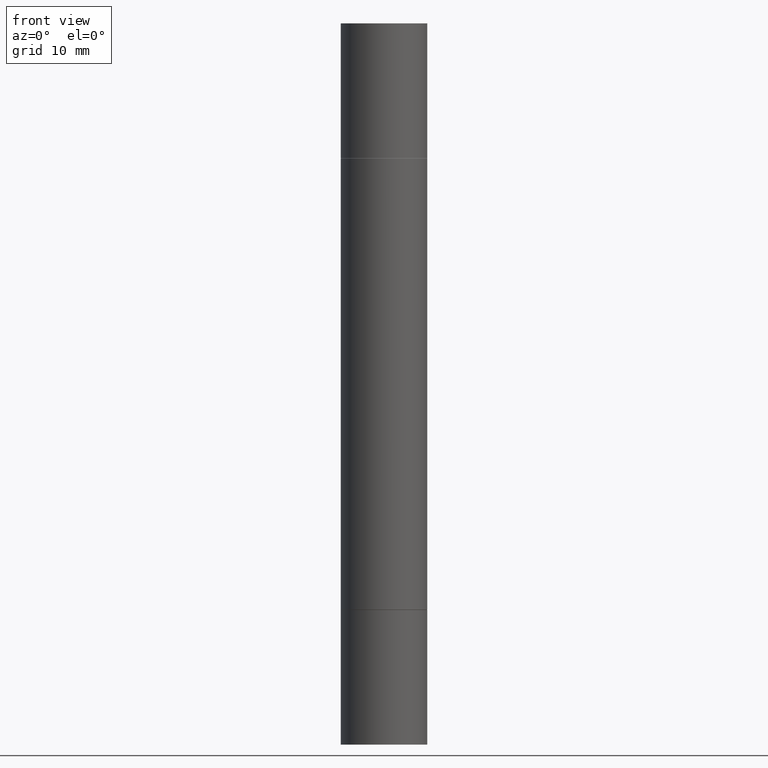
[diagram: clean part render]
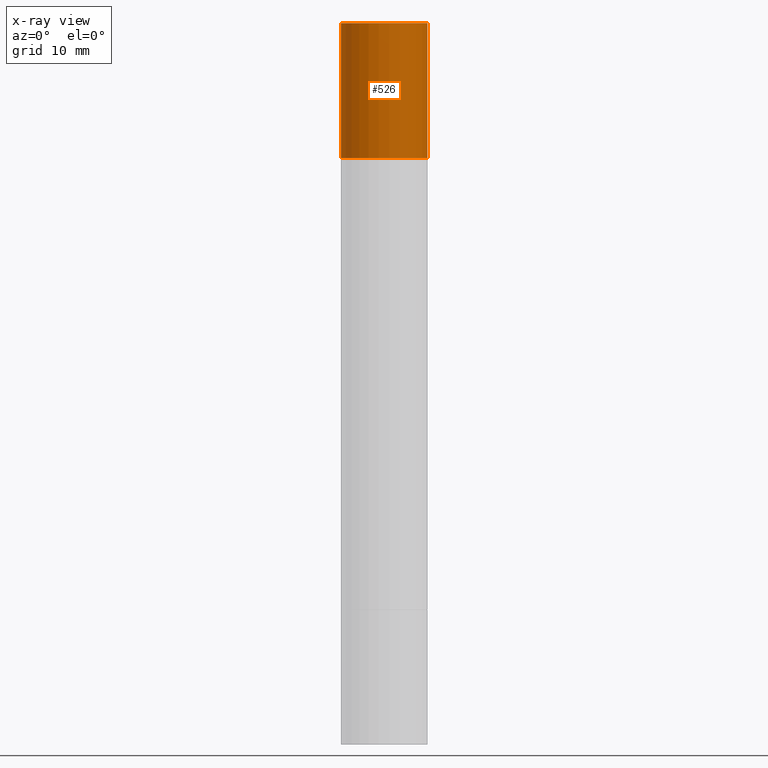
[diagram: x-ray — body ghosted, one internal face saturated and labeled with its STEP entity id]
A machine part, front view, then the same camera in x-ray: the body is ghosted and one INTERNAL B-rep face — a face not visible from any outside direction — is saturated and labeled: STEP entity #526.
In plain terms, the highlighted cylindrical surface (partial cylindrical patch) has radius 4.4996 mm, axis along (-0, -0, -1).
Its self-contained STEP definition (entity closure, byte-faithful):
#21 = ORIENTED_EDGE ( 'NONE', *, *, #302, .F. ) ;
#31 = DIRECTION ( 'NONE',  ( 1.000000000000000000, -6.982962677686272233E-15, 0.000000000000000000 ) ) ;
#47 = VERTEX_POINT ( 'NONE', #639 ) ;
#48 = DIRECTION ( 'NONE',  ( -2.445468806185136877E-29, -3.492890411551753071E-15, -1.000000000000000000 ) ) ;
#53 = ORIENTED_EDGE ( 'NONE', *, *, #358, .T. ) ;
#57 = DIRECTION ( 'NONE',  ( 1.000000000000000000, -6.982962677686266711E-15, 0.000000000000000000 ) ) ;
#95 = VECTOR ( 'NONE', #48, 39.37007874015748143 ) ;
#98 = CIRCLE ( 'NONE', #468, 0.1771500000000000019 ) ;
#111 = CARTESIAN_POINT ( 'NONE',  ( 0.1771500000000000019, -1.154875829063514805E-14, -2.952799999999998981 ) ) ;
#137 = EDGE_LOOP ( 'NONE', ( #309, #320, #53, #21 ) ) ;
#181 = CARTESIAN_POINT ( 'NONE',  ( 0.1771500000000000019, -3.160232678252458120E-15, -0.5511999999999995792 ) ) ;
#249 = EDGE_CURVE ( 'NONE', #603, #571, #98, .T. ) ;
#250 = CARTESIAN_POINT ( 'NONE',  ( 7.220980290903470182E-29, 2.080354946989631982E-18, 5.463695987328526437E-16 ) ) ;
#256 = DIRECTION ( 'NONE',  ( 1.000000000000000000, -6.982962677686266711E-15, 0.000000000000000000 ) ) ;
#284 = CARTESIAN_POINT ( 'NONE',  ( -0.1771500000000000019, -9.096389231977797770E-15, -2.952799999999998981 ) ) ;
#289 = CYLINDRICAL_SURFACE ( 'NONE', #322, 0.1771500000000000019 ) ;
#296 = CARTESIAN_POINT ( 'NONE',  ( 0.000000000000000000, -1.031172645228302408E-14, -2.952799999999998981 ) ) ;
#302 = EDGE_CURVE ( 'NONE', #571, #459, #363, .T. ) ;
#309 = ORIENTED_EDGE ( 'NONE', *, *, #249, .F. ) ;
#320 = ORIENTED_EDGE ( 'NONE', *, *, #474, .T. ) ;
#322 = AXIS2_PLACEMENT_3D ( 'NONE', #296, #496, #31 ) ;
#357 = CARTESIAN_POINT ( 'NONE',  ( -0.1771500000000000019, 2.547769778285537851E-16, 5.463695987328559963E-16 ) ) ;
#358 = EDGE_CURVE ( 'NONE', #47, #459, #431, .T. ) ;
#363 = LINE ( 'NONE', #111, #95 ) ;
#431 = CIRCLE ( 'NONE', #523, 0.1771500000000000019 ) ;
#440 = FACE_OUTER_BOUND ( 'NONE', #137, .T. ) ;
#452 = LINE ( 'NONE', #284, #543 ) ;
#458 = DIRECTION ( 'NONE',  ( 2.445468806185136597E-29, 3.492890411551752677E-15, 1.000000000000000000 ) ) ;
#459 = VERTEX_POINT ( 'NONE', #181 ) ;
#462 = DIRECTION ( 'NONE',  ( 2.445468806185136597E-29, 3.492890411551752677E-15, 1.000000000000000000 ) ) ;
#468 = AXIS2_PLACEMENT_3D ( 'NONE', #250, #458, #57 ) ;
#474 = EDGE_CURVE ( 'NONE', #603, #47, #452, .T. ) ;
#496 = DIRECTION ( 'NONE',  ( -2.445468806185136597E-29, -3.492890411551752677E-15, -1.000000000000000000 ) ) ;
#502 = CARTESIAN_POINT ( 'NONE',  ( 0.1771500000000000019, -1.234951483405132701E-15, 5.463695987328526437E-16 ) ) ;
#523 = AXIS2_PLACEMENT_3D ( 'NONE', #573, #462, #256 ) ;
#526 = ADVANCED_FACE ( 'NONE', ( #440 ), #289, .T. ) ;
#543 = VECTOR ( 'NONE', #617, 39.37007874015748143 ) ;
#571 = VERTEX_POINT ( 'NONE', #502 ) ;
#573 = CARTESIAN_POINT ( 'NONE',  ( 5.873037884934223228E-29, -1.923200839900336120E-15, -0.5511999999999995792 ) ) ;
#603 = VERTEX_POINT ( 'NONE', #357 ) ;
#617 = DIRECTION ( 'NONE',  ( -2.445468806185136877E-29, -3.492890411551753071E-15, -1.000000000000000000 ) ) ;
#639 = CARTESIAN_POINT ( 'NONE',  ( -0.1771500000000000019, 2.547769778285537851E-16, -0.5511999999999995792 ) ) ;